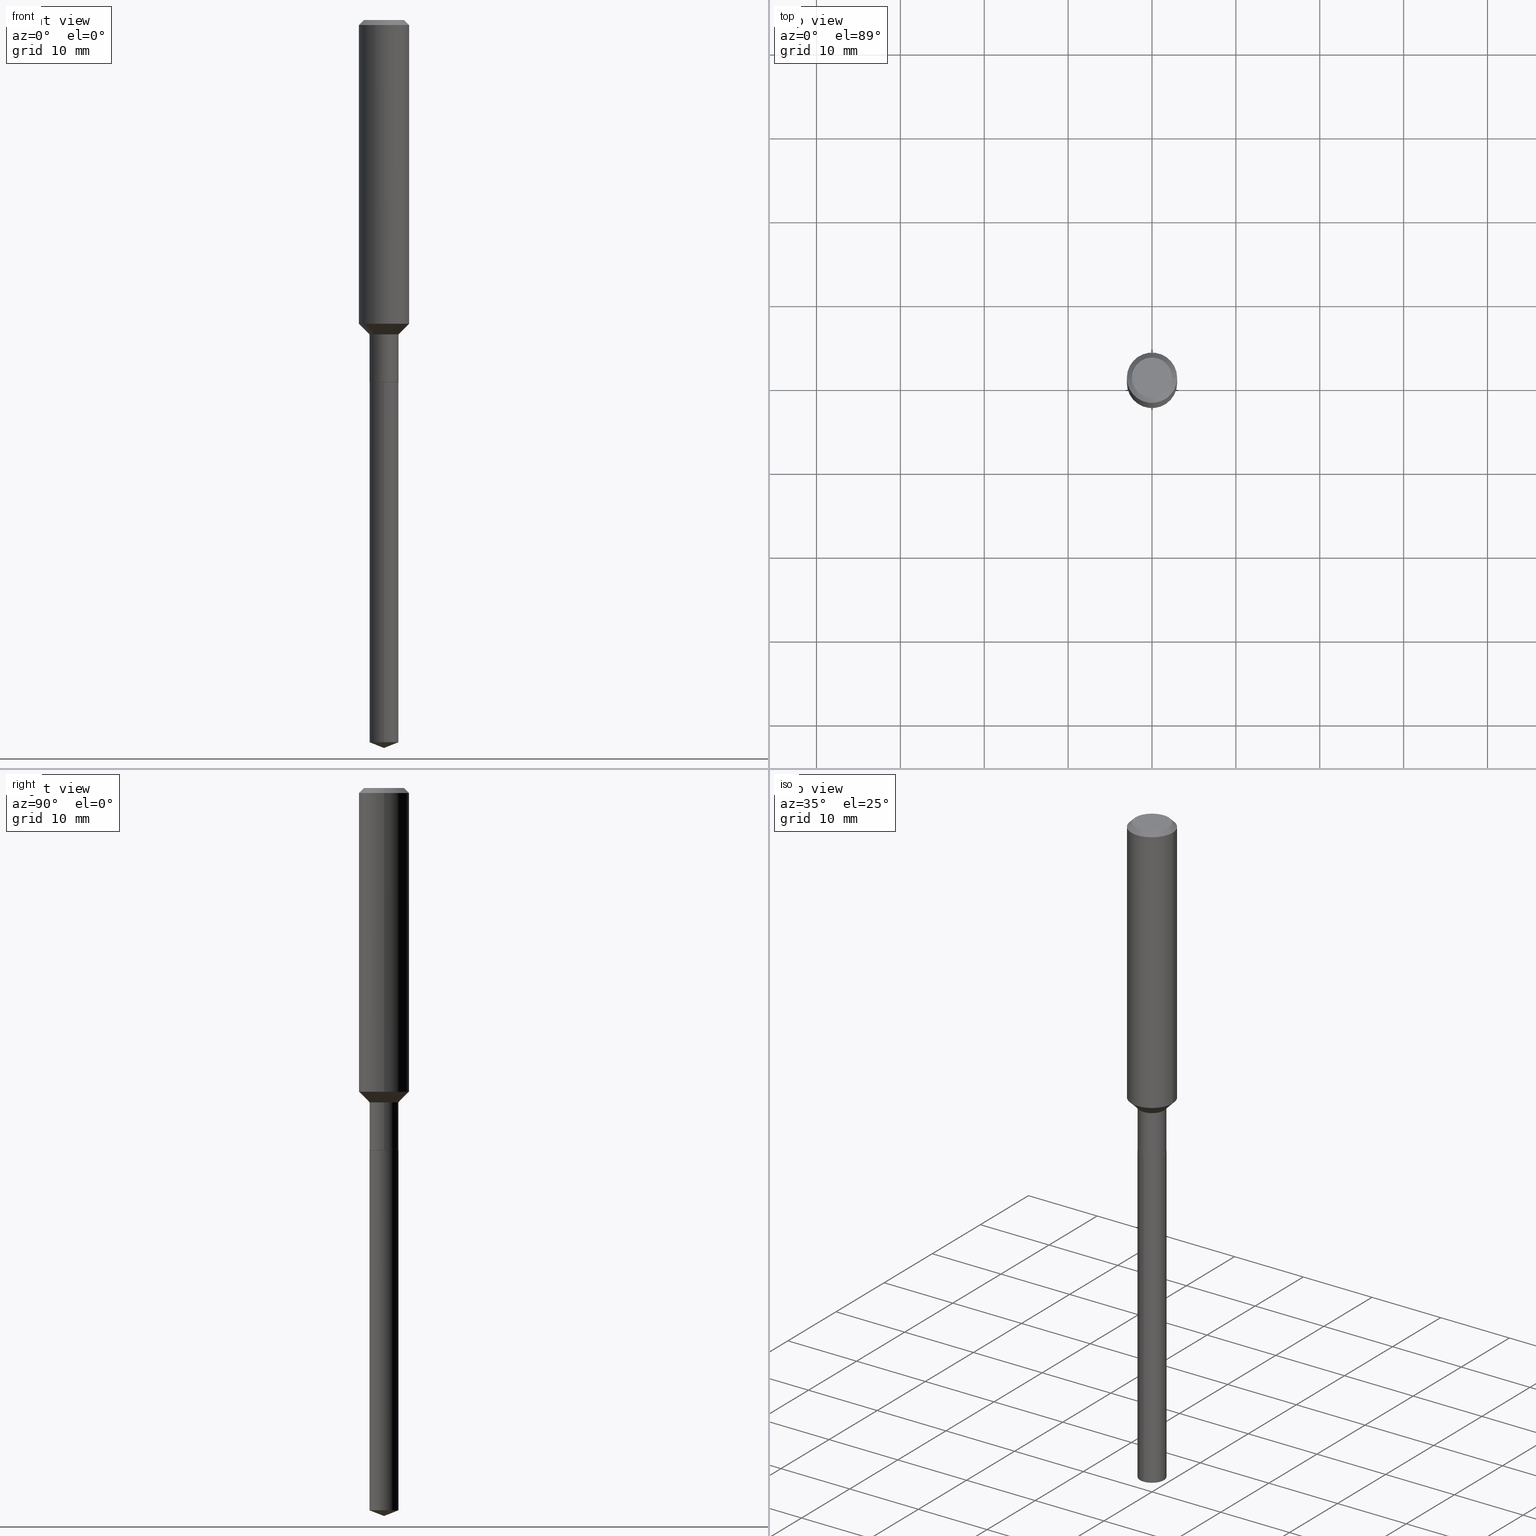
[diagram: canonical four-view strip — front | top / right | iso, engineering-drawing reading convention]
A machine part, canonical four-view strip (front | top / right | iso — engineering-drawing reading convention). The complete STEP part file that produces these views, byte-faithful:
ISO-10303-21;
HEADER;
FILE_DESCRIPTION (( 'STEP AP203' ),
    '1' );
FILE_NAME ('56509.STEP',
    '2024-04-24T18:16:12',
    ( '' ),
    ( '' ),
    'SwSTEP 2.0',
    'SolidWorks 2023',
    '' );
FILE_SCHEMA (( 'CONFIG_CONTROL_DESIGN' ));
ENDSEC;

DATA;
#1 = PERSON_AND_ORGANIZATION ( #308, #199 ) ;
#2 = CIRCLE ( 'NONE', #305, 0.06800000000000000488 ) ;
#3 = SHAPE_DEFINITION_REPRESENTATION ( #360, #361 ) ;
#4 = PERSON_AND_ORGANIZATION ( #308, #199 ) ;
#5 = EDGE_CURVE ( 'NONE', #236, #238, #112, .T. ) ;
#6 = DIRECTION ( 'NONE',  ( -2.445468806185136877E-29, 3.491481338843145188E-15, 1.000000000000000000 ) ) ;
#7 = VECTOR ( 'NONE', #245, 39.37007874015748143 ) ;
#8 = CARTESIAN_POINT ( 'NONE',  ( 4.156563329872874404E-29, -5.934470831631691157E-15, -1.699699999999999100 ) ) ;
#9 = ORIENTED_EDGE ( 'NONE', *, *, #343, .T. ) ;
#10 = EDGE_LOOP ( 'NONE', ( #11, #353 ) ) ;
#11 = ORIENTED_EDGE ( 'NONE', *, *, #456, .F. ) ;
#12 = VECTOR ( 'NONE', #85, 39.37007874015748143 ) ;
#13 = LOCAL_TIME ( 14, 16, 12.00000000000000000, #253 ) ;
#14 = ORIENTED_EDGE ( 'NONE', *, *, #34, .T. ) ;
#15 = CARTESIAN_POINT ( 'NONE',  ( 3.486015783216909425E-29, -4.977106648520900734E-15, -1.425499999999999101 ) ) ;
#16 = ORIENTED_EDGE ( 'NONE', *, *, #77, .F. ) ;
#17 = DIRECTION ( 'NONE',  ( -2.445468806185136877E-29, 3.491481338843145188E-15, 1.000000000000000000 ) ) ;
#18 = LINE ( 'NONE', #313, #378 ) ;
#19 = EDGE_CURVE ( 'NONE', #37, #236, #401, .T. ) ;
#20 = ORIENTED_EDGE ( 'NONE', *, *, #246, .T. ) ;
#21 = ADVANCED_FACE ( 'NONE', ( #49 ), #30, .T. ) ;
#22 = PLANE ( 'NONE',  #198 ) ;
#23 = CIRCLE ( 'NONE', #147, 0.06799999999999997713 ) ;
#24 = DIRECTION ( 'NONE',  ( -6.982962677686265133E-15, -1.000000000000000000, 3.498627837350077192E-15 ) ) ;
#25 = DIRECTION ( 'NONE',  ( 6.982962677686265922E-15, 1.000000000000000000, -3.486014308935233447E-15 ) ) ;
#26 = DIMENSIONAL_EXPONENTS ( 1.000000000000000000, 0.000000000000000000, 0.000000000000000000, 0.000000000000000000, 0.000000000000000000, 0.000000000000000000, 0.000000000000000000 ) ;
#27 = CARTESIAN_POINT ( 'NONE',  ( 0.06799999999999997713, -5.626871325679608817E-15, -1.475599999999999135 ) ) ;
#28 = FACE_OUTER_BOUND ( 'NONE', #389, .T. ) ;
#29 = DIRECTION ( 'NONE',  ( 1.000000000000000000, -6.982962677686265922E-15, 4.876176775795935793E-29 ) ) ;
#30 = CONICAL_SURFACE ( 'NONE', #89, 0.06750000000000000444, 0.7853981633975507526 ) ;
#31 = CIRCLE ( 'NONE', #279, 0.06750000000000000444 ) ;
#32 = DIRECTION ( 'NONE',  ( 0.000000000000000000, 0.000000000000000000, 1.000000000000000000 ) ) ;
#33 = DIRECTION ( 'NONE',  ( -2.449286412765611293E-29, 3.486014308935233053E-15, 1.000000000000000000 ) ) ;
#34 = EDGE_CURVE ( 'NONE', #37, #238, #18, .T. ) ;
#35 = VERTEX_POINT ( 'NONE', #471 ) ;
#36 = PERSON_AND_ORGANIZATION_ROLE ( 'creator' ) ;
#37 = VERTEX_POINT ( 'NONE', #235 ) ;
#38 = AXIS2_PLACEMENT_3D ( 'NONE', #231, #151, #45 ) ;
#39 = CC_DESIGN_APPROVAL ( #110, ( #130 ) ) ;
#40 = APPLICATION_CONTEXT ( 'configuration controlled 3d designs of mechanical parts and assemblies' ) ;
#41 = LINE ( 'NONE', #462, #325 ) ;
#42 = CLOSED_SHELL ( 'NONE', ( #21, #226, #56, #478, #258, #222, #119, #380, #384, #205, #186, #74 ) ) ;
#43 = AXIS2_PLACEMENT_3D ( 'NONE', #324, #352, #224 ) ;
#44 = AXIS2_PLACEMENT_3D ( 'NONE', #177, #366, #248 ) ;
#45 = DIRECTION ( 'NONE',  ( 1.000000000000000000, -6.982962677686268288E-15, 0.000000000000000000 ) ) ;
#46 = AXIS2_PLACEMENT_3D ( 'NONE', #326, #161, #24 ) ;
#47 = EDGE_LOOP ( 'NONE', ( #206, #96, #239, #265 ) ) ;
#48 = DIRECTION ( 'NONE',  ( -2.449286412765611293E-29, 3.486014308935233053E-15, 1.000000000000000000 ) ) ;
#49 = FACE_OUTER_BOUND ( 'NONE', #428, .T. ) ;
#50 = ORIENTED_EDGE ( 'NONE', *, *, #354, .F. ) ;
#51 = LINE ( 'NONE', #234, #434 ) ;
#52 = CARTESIAN_POINT ( 'NONE',  ( 3.608533770406785376E-29, -5.152029863596943281E-15, -1.475599999999999135 ) ) ;
#53 = ORIENTED_EDGE ( 'NONE', *, *, #191, .T. ) ;
#54 =( GEOMETRIC_REPRESENTATION_CONTEXT ( 3 ) GLOBAL_UNCERTAINTY_ASSIGNED_CONTEXT ( ( #329 ) ) GLOBAL_UNIT_ASSIGNED_CONTEXT ( ( #292, #288, #445 ) ) REPRESENTATION_CONTEXT ( 'NONE', 'WORKASPACE' ) );
#55 = ORIENTED_EDGE ( 'NONE', *, *, #19, .F. ) ;
#56 = ADVANCED_FACE ( 'NONE', ( #189 ), #464, .T. ) ;
#57 = FACE_OUTER_BOUND ( 'NONE', #438, .T. ) ;
#58 = ORIENTED_EDGE ( 'NONE', *, *, #300, .F. ) ;
#59 = DIRECTION ( 'NONE',  ( -2.449286412765611293E-29, 3.486014308935233053E-15, 1.000000000000000000 ) ) ;
#60 = FACE_OUTER_BOUND ( 'NONE', #10, .T. ) ;
#61 = ORIENTED_EDGE ( 'NONE', *, *, #312, .T. ) ;
#62 = CARTESIAN_POINT ( 'NONE',  ( 0.06799999999999997713, -5.626871325679608817E-15, -1.475599999999999135 ) ) ;
#63 = CARTESIAN_POINT ( 'NONE',  ( 0.000000000000000000, 0.000000000000000000, 0.000000000000000000 ) ) ;
#64 = VECTOR ( 'NONE', #17, 39.37007874015748143 ) ;
#65 = DIRECTION ( 'NONE',  ( -0.7071067811865459074, 2.468850131082240100E-15, -0.7071067811865491270 ) ) ;
#66 = DIRECTION ( 'NONE',  ( 1.000000000000000000, -6.982962677686263555E-15, 0.000000000000000000 ) ) ;
#67 = DIRECTION ( 'NONE',  ( -2.438088387897960049E-29, 3.491481338843145188E-15, 1.000000000000000000 ) ) ;
#68 = EDGE_LOOP ( 'NONE', ( #58, #190, #9, #156 ) ) ;
#69 = DATE_TIME_ROLE ( 'creation_date' ) ;
#70 = DIRECTION ( 'NONE',  ( 1.000000000000000000, -6.982962677686260400E-15, 0.000000000000000000 ) ) ;
#71 = ORIENTED_EDGE ( 'NONE', *, *, #227, .F. ) ;
#72 = CONICAL_SURFACE ( 'NONE', #476, 0.06799999999999997713, 0.7853981633974491672 ) ;
#73 = PERSON_AND_ORGANIZATION_ROLE ( 'creator' ) ;
#74 = ADVANCED_FACE ( 'NONE', ( #310 ), #183, .T. ) ;
#75 = EDGE_CURVE ( 'NONE', #35, #407, #81, .T. ) ;
#76 = APPROVAL_ROLE ( '' ) ;
#77 = EDGE_CURVE ( 'NONE', #211, #123, #269, .T. ) ;
#78 = PERSON_AND_ORGANIZATION ( #308, #199 ) ;
#79 = CLOSED_SHELL ( 'NONE', ( #284, #341, #406, #303, #135 ) ) ;
#80 = AXIS2_PLACEMENT_3D ( 'NONE', #15, #473, #170 ) ;
#81 = LINE ( 'NONE', #427, #277 ) ;
#82 = AXIS2_PLACEMENT_3D ( 'NONE', #330, #213, #70 ) ;
#83 = CONICAL_SURFACE ( 'NONE', #46, 99.94676754583788636, 1.195550537616112408 ) ;
#84 = ORIENTED_EDGE ( 'NONE', *, *, #187, .F. ) ;
#85 = DIRECTION ( 'NONE',  ( -2.449286412765611293E-29, 3.486014308935233447E-15, 1.000000000000000000 ) ) ;
#86 = ORIENTED_EDGE ( 'NONE', *, *, #479, .F. ) ;
#87 = DIRECTION ( 'NONE',  ( -2.445468806185136597E-29, 3.491481338843145583E-15, 1.000000000000000000 ) ) ;
#88 = ORIENTED_EDGE ( 'NONE', *, *, #479, .T. ) ;
#89 = AXIS2_PLACEMENT_3D ( 'NONE', #8, #363, #429 ) ;
#90 = CARTESIAN_POINT ( 'NONE',  ( 8.369325470406068232E-29, -1.191171089363168791E-14, -3.416999999999998927 ) ) ;
#91 = ORIENTED_EDGE ( 'NONE', *, *, #244, .T. ) ;
#92 = CARTESIAN_POINT ( 'NONE',  ( 3.608533770406785376E-29, -5.152029863596943281E-15, -1.475599999999999135 ) ) ;
#93 = EDGE_LOOP ( 'NONE', ( #433, #88, #233, #162 ) ) ;
#94 = CYLINDRICAL_SURFACE ( 'NONE', #43, 0.06800000000000000488 ) ;
#95 = CARTESIAN_POINT ( 'NONE',  ( 0.06750000000000000444, -6.405820812375514475E-15, -1.699699999999999100 ) ) ;
#96 = ORIENTED_EDGE ( 'NONE', *, *, #354, .T. ) ;
#97 = CARTESIAN_POINT ( 'NONE',  ( 4.156563329872874404E-29, -5.934470831631691157E-15, -1.699699999999999100 ) ) ;
#98 = FACE_OUTER_BOUND ( 'NONE', #475, .T. ) ;
#99 = CIRCLE ( 'NONE', #44, 0.09447999999999998066 ) ;
#100 = COORDINATED_UNIVERSAL_TIME_OFFSET ( 5, 0, .BEHIND. ) ;
#101 = CARTESIAN_POINT ( 'NONE',  ( -0.06799999999999997713, -4.668860803280075514E-15, -1.475599999999999135 ) ) ;
#102 = VERTEX_POINT ( 'NONE', #432 ) ;
#103 = CARTESIAN_POINT ( 'NONE',  ( 4.155340595469782163E-29, -5.932725090962269653E-15, -1.699199999999999156 ) ) ;
#104 = ORIENTED_EDGE ( 'NONE', *, *, #34, .F. ) ;
#105 = AXIS2_PLACEMENT_3D ( 'NONE', #385, #391, #271 ) ;
#106 = LOCAL_TIME ( 14, 16, 12.00000000000000000, #219 ) ;
#107 = AXIS2_PLACEMENT_3D ( 'NONE', #321, #167, #237 ) ;
#108 = APPROVAL_DATE_TIME ( #375, #110 ) ;
#109 = EDGE_CURVE ( 'NONE', #466, #123, #450, .T. ) ;
#110 = APPROVAL ( #448, 'UNSPECIFIED' ) ;
#111 = COORDINATED_UNIVERSAL_TIME_OFFSET ( 5, 0, .BEHIND. ) ;
#112 = CIRCLE ( 'NONE', #397, 0.06800000000000000488 ) ;
#113 = AXIS2_PLACEMENT_3D ( 'NONE', #120, #468, #164 ) ;
#114 = DIRECTION ( 'NONE',  ( -2.445468806185136597E-29, 3.491481338843145583E-15, 1.000000000000000000 ) ) ;
#115 = EDGE_CURVE ( 'NONE', #238, #160, #229, .T. ) ;
#116 = DIRECTION ( 'NONE',  ( 1.000000000000000000, -6.982962677686266711E-15, 0.000000000000000000 ) ) ;
#117 = EDGE_LOOP ( 'NONE', ( #165, #157 ) ) ;
#118 = AXIS2_PLACEMENT_3D ( 'NONE', #153, #48, #309 ) ;
#119 = ADVANCED_FACE ( 'NONE', ( #393 ), #72, .T. ) ;
#120 = CARTESIAN_POINT ( 'NONE',  ( 4.156563329872874404E-29, -5.934470831631691157E-15, -1.699699999999999100 ) ) ;
#121 = VERTEX_POINT ( 'NONE', #272 ) ;
#122 = DIRECTION ( 'NONE',  ( -0.7071067811866199593, 7.493145998870616062E-15, 0.7071067811864750752 ) ) ;
#123 = VERTEX_POINT ( 'NONE', #388 ) ;
#124 = FACE_OUTER_BOUND ( 'NONE', #270, .T. ) ;
#125 = DIRECTION ( 'NONE',  ( 1.000000000000000000, -6.982962677686266711E-15, 4.876176775795936353E-29 ) ) ;
#126 = EDGE_LOOP ( 'NONE', ( #314, #447, #202, #197 ) ) ;
#127 = CARTESIAN_POINT ( 'NONE',  ( 4.831690603169513859E-16, 0.06799999999999407907, -1.699699999999999322 ) ) ;
#128 = VECTOR ( 'NONE', #411, 39.37007874015748143 ) ;
#129 = CARTESIAN_POINT ( 'NONE',  ( 0.09447999999999998066, -7.704367267948738690E-16, -2.700101262759583929E-17 ) ) ;
#130 = PRODUCT_DEFINITION_FORMATION_WITH_SPECIFIED_SOURCE ( 'ANY', '', #261, .NOT_KNOWN. ) ;
#131 = EDGE_LOOP ( 'NONE', ( #16, #264, #154, #461 ) ) ;
#132 = DIRECTION ( 'NONE',  ( 0.7071067811866199593, -2.468850131083015945E-15, 0.7071067811864750752 ) ) ;
#133 = LINE ( 'NONE', #362, #64 ) ;
#134 = PLANE ( 'NONE',  #399 ) ;
#135 = ADVANCED_FACE ( 'NONE', ( #403 ), #134, .F. ) ;
#136 = CARTESIAN_POINT ( 'NONE',  ( -0.1180999999999999966, -1.690636747939508715E-15, -0.02362000000000014435 ) ) ;
#137 = CARTESIAN_POINT ( 'NONE',  ( -4.748414620825831994E-16, -0.06800000000001184264, -3.390214087658182773 ) ) ;
#138 = DIRECTION ( 'NONE',  ( 1.000000000000000000, -6.982962677686266711E-15, 0.000000000000000000 ) ) ;
#139 = CARTESIAN_POINT ( 'NONE',  ( -4.748414620826246146E-16, -0.06800000000000594458, -1.699699999999998878 ) ) ;
#140 = AXIS2_PLACEMENT_3D ( 'NONE', #337, #210, #66 ) ;
#141 = EDGE_LOOP ( 'NONE', ( #104, #317, #398 ) ) ;
#142 = AXIS2_PLACEMENT_3D ( 'NONE', #370, #482, #163 ) ;
#143 = APPROVAL_ROLE ( '' ) ;
#144 = CYLINDRICAL_SURFACE ( 'NONE', #347, 0.06800000000000000488 ) ;
#145 = APPROVAL_STATUS ( 'not_yet_approved' ) ;
#146 = DATE_AND_TIME ( #179, #336 ) ;
#147 = AXIS2_PLACEMENT_3D ( 'NONE', #263, #458, #307 ) ;
#148 = CALENDAR_DATE ( 2024, 24, 4 ) ;
#149 = SECURITY_CLASSIFICATION_LEVEL ( 'unclassified' ) ;
#150 = AXIS2_PLACEMENT_3D ( 'NONE', #192, #87, #116 ) ;
#151 = DIRECTION ( 'NONE',  ( -2.445468806185136597E-29, 3.491481338843145583E-15, 1.000000000000000000 ) ) ;
#152 = EDGE_CURVE ( 'NONE', #323, #102, #291, .T. ) ;
#153 = CARTESIAN_POINT ( 'NONE',  ( -8.806587604126471793E-28, 1.253236546277296168E-13, 35.95307874015747984 ) ) ;
#154 = ORIENTED_EDGE ( 'NONE', *, *, #453, .T. ) ;
#155 = VERTEX_POINT ( 'NONE', #95 ) ;
#156 = ORIENTED_EDGE ( 'NONE', *, *, #340, .F. ) ;
#157 = ORIENTED_EDGE ( 'NONE', *, *, #172, .T. ) ;
#158 = CIRCLE ( 'NONE', #409, 0.1180999999999999966 ) ;
#159 = VERTEX_POINT ( 'NONE', #485 ) ;
#160 = VERTEX_POINT ( 'NONE', #139 ) ;
#161 = DIRECTION ( 'NONE',  ( -2.449286412765611293E-29, 3.486014308935233053E-15, 1.000000000000000000 ) ) ;
#162 = ORIENTED_EDGE ( 'NONE', *, *, #115, .F. ) ;
#163 = DIRECTION ( 'NONE',  ( -1.000000000000000000, 6.982962677686266711E-15, 0.000000000000000000 ) ) ;
#164 = DIRECTION ( 'NONE',  ( 1.000000000000000000, -6.982962677686268288E-15, 0.000000000000000000 ) ) ;
#165 = ORIENTED_EDGE ( 'NONE', *, *, #386, .T. ) ;
#166 = AXIS2_PLACEMENT_3D ( 'NONE', #412, #204, #373 ) ;
#167 = DIRECTION ( 'NONE',  ( -2.445468806185136597E-29, 3.491481338843145583E-15, 1.000000000000000000 ) ) ;
#168 = CC_DESIGN_APPROVAL ( #232, ( #260 ) ) ;
#169 = DIRECTION ( 'NONE',  ( -1.000000000000000000, 6.982962677686265922E-15, -4.876176775795935793E-29 ) ) ;
#170 = DIRECTION ( 'NONE',  ( 1.000000000000000000, -6.982962677686263555E-15, 0.000000000000000000 ) ) ;
#171 = DIRECTION ( 'NONE',  ( -1.000000000000000000, 6.982962677686266711E-15, 0.000000000000000000 ) ) ;
#172 = EDGE_CURVE ( 'NONE', #402, #160, #207, .T. ) ;
#173 = LINE ( 'NONE', #331, #7 ) ;
#174 = DESIGN_CONTEXT ( 'detailed design', #40, 'design' ) ;
#175 = CYLINDRICAL_SURFACE ( 'NONE', #443, 0.06800000000000000488 ) ;
#176 = CARTESIAN_POINT ( 'NONE',  ( 0.000000000000000000, 0.000000000000000000, 0.000000000000000000 ) ) ;
#177 = CARTESIAN_POINT ( 'NONE',  ( 6.603013411620882309E-46, -9.427353171913646324E-32, -2.700101262760083747E-17 ) ) ;
#178 = ORIENTED_EDGE ( 'NONE', *, *, #75, .T. ) ;
#179 = CALENDAR_DATE ( 2024, 24, 4 ) ;
#180 = PRODUCT_DEFINITION ( 'UNKNOWN', '', #130, #174 ) ;
#181 = CC_DESIGN_DATE_AND_TIME_ASSIGNMENT ( #304, #344, ( #260 ) ) ;
#182 = PERSON_AND_ORGANIZATION ( #308, #199 ) ;
#183 = CONICAL_SURFACE ( 'NONE', #113, 0.06750000000000000444, 0.7853981633975507526 ) ;
#184 = DATE_AND_TIME ( #148, #13 ) ;
#185 = EDGE_CURVE ( 'NONE', #364, #121, #408, .T. ) ;
#186 = ADVANCED_FACE ( 'NONE', ( #60 ), #376, .F. ) ;
#187 = EDGE_CURVE ( 'NONE', #407, #282, #387, .T. ) ;
#188 = AXIS2_PLACEMENT_3D ( 'NONE', #350, #114, #125 ) ;
#189 = FACE_OUTER_BOUND ( 'NONE', #47, .T. ) ;
#190 = ORIENTED_EDGE ( 'NONE', *, *, #187, .T. ) ;
#191 = EDGE_CURVE ( 'NONE', #211, #159, #99, .T. ) ;
#192 = CARTESIAN_POINT ( 'NONE',  ( 5.776197320209328408E-31, -8.246878922347560526E-17, -0.02362000000000014435 ) ) ;
#193 = CC_DESIGN_PERSON_AND_ORGANIZATION_ASSIGNMENT ( #452, #73, ( #180 ) ) ;
#194 = ORIENTED_EDGE ( 'NONE', *, *, #77, .T. ) ;
#195 = MANIFOLD_SOLID_BREP ( 'Body-Move/Copy2[1]', #79 ) ;
#196 = DIRECTION ( 'NONE',  ( -2.445468806185136597E-29, 3.491481338843145583E-15, 1.000000000000000000 ) ) ;
#197 = ORIENTED_EDGE ( 'NONE', *, *, #152, .F. ) ;
#198 = AXIS2_PLACEMENT_3D ( 'NONE', #449, #405, #169 ) ;
#199 = ORGANIZATION ( 'UNSPECIFIED', 'UNSPECIFIED', '' ) ;
#200 = ORIENTED_EDGE ( 'NONE', *, *, #422, .F. ) ;
#201 = DIRECTION ( 'NONE',  ( -2.445468806185136877E-29, 3.491481338843145188E-15, 1.000000000000000000 ) ) ;
#202 = ORIENTED_EDGE ( 'NONE', *, *, #374, .T. ) ;
#203 = ORIENTED_EDGE ( 'NONE', *, *, #227, .T. ) ;
#204 = DIRECTION ( 'NONE',  ( -2.445468806185136597E-29, 3.491481338843145583E-15, 1.000000000000000000 ) ) ;
#205 = ADVANCED_FACE ( 'NONE', ( #327 ), #22, .F. ) ;
#206 = ORIENTED_EDGE ( 'NONE', *, *, #422, .T. ) ;
#207 = CIRCLE ( 'NONE', #420, 0.06800000000000000488 ) ;
#208 = FACE_OUTER_BOUND ( 'NONE', #131, .T. ) ;
#209 = CC_DESIGN_APPROVAL ( #383, ( #180 ) ) ;
#210 = DIRECTION ( 'NONE',  ( -2.445468806185136597E-29, 3.491481338843145583E-15, 1.000000000000000000 ) ) ;
#211 = VERTEX_POINT ( 'NONE', #129 ) ;
#212 = CARTESIAN_POINT ( 'NONE',  ( 5.776197320209328408E-31, -8.246878922347560526E-17, -0.02362000000000014435 ) ) ;
#213 = DIRECTION ( 'NONE',  ( -2.445468806185136597E-29, 3.491481338843145583E-15, 1.000000000000000000 ) ) ;
#214 = DIRECTION ( 'NONE',  ( 1.000000000000000000, -6.982962677686260400E-15, 0.000000000000000000 ) ) ;
#215 = MANIFOLD_SOLID_BREP ( 'Body-Move/Copy2[2]', #42 ) ;
#216 = CALENDAR_DATE ( 2024, 24, 4 ) ;
#217 = CARTESIAN_POINT ( 'NONE',  ( 6.603013411620882309E-46, -9.427353171913646324E-32, -2.700101262760083747E-17 ) ) ;
#218 = CIRCLE ( 'NONE', #82, 0.06800000000000000488 ) ;
#219 = COORDINATED_UNIVERSAL_TIME_OFFSET ( 5, 0, .BEHIND. ) ;
#220 = EDGE_LOOP ( 'NONE', ( #442, #287, #425, #84 ) ) ;
#221 = APPROVAL_DATE_TIME ( #184, #383 ) ;
#222 = ADVANCED_FACE ( 'NONE', ( #437 ), #144, .T. ) ;
#223 = PERSON_AND_ORGANIZATION_ROLE ( 'design_supplier' ) ;
#224 = DIRECTION ( 'NONE',  ( -6.982962677686265922E-15, -1.000000000000000000, 4.017423520094504617E-15 ) ) ;
#225 = AXIS2_PLACEMENT_3D ( 'NONE', #176, #32, #417 ) ;
#226 = ADVANCED_FACE ( 'NONE', ( #98 ), #266, .T. ) ;
#227 = EDGE_CURVE ( 'NONE', #282, #407, #218, .T. ) ;
#228 = CARTESIAN_POINT ( 'NONE',  ( -0.1181000000000001632, -4.137955677588221748E-15, -1.425499999999999101 ) ) ;
#229 = LINE ( 'NONE', #459, #12 ) ;
#230 = CIRCLE ( 'NONE', #38, 0.06750000000000000444 ) ;
#231 = CARTESIAN_POINT ( 'NONE',  ( 4.156563329872874404E-29, -5.934470831631691157E-15, -1.699699999999999100 ) ) ;
#232 = APPROVAL ( #487, 'UNSPECIFIED' ) ;
#233 = ORIENTED_EDGE ( 'NONE', *, *, #386, .F. ) ;
#234 = CARTESIAN_POINT ( 'NONE',  ( -0.06800000000000000488, 4.831690603168681611E-16, -3.344875861373336055E-30 ) ) ;
#235 = CARTESIAN_POINT ( 'NONE',  ( 8.369211672420092534E-29, -1.191171089363168791E-14, -3.416999999999998927 ) ) ;
#236 = VERTEX_POINT ( 'NONE', #483 ) ;
#237 = DIRECTION ( 'NONE',  ( 1.000000000000000000, -6.982962677686266711E-15, 4.876176775795936353E-29 ) ) ;
#238 = VERTEX_POINT ( 'NONE', #137 ) ;
#239 = ORIENTED_EDGE ( 'NONE', *, *, #435, .F. ) ;
#240 = AXIS2_PLACEMENT_3D ( 'NONE', #217, #481, #415 ) ;
#241 = DIRECTION ( 'NONE',  ( -6.982962677686265922E-15, -1.000000000000000000, 4.017423520094504617E-15 ) ) ;
#242 = DIRECTION ( 'NONE',  ( 6.611014441532047656E-15, 0.9304175679820245737, 0.3665012267242971356 ) ) ;
#243 = ORIENTED_EDGE ( 'NONE', *, *, #185, .F. ) ;
#244 = EDGE_CURVE ( 'NONE', #121, #323, #251, .T. ) ;
#245 = DIRECTION ( 'NONE',  ( -2.449286412765611293E-29, 3.486014308935233447E-15, 1.000000000000000000 ) ) ;
#246 = EDGE_CURVE ( 'NONE', #159, #211, #368, .T. ) ;
#247 = CARTESIAN_POINT ( 'NONE',  ( 4.156563329872874404E-29, -5.934470831631691157E-15, -1.699699999999999100 ) ) ;
#248 = DIRECTION ( 'NONE',  ( 1.000000000000000000, -6.982962677686267499E-15, 4.875432709231658792E-29 ) ) ;
#249 = VECTOR ( 'NONE', #250, 39.37007874015748143 ) ;
#250 = DIRECTION ( 'NONE',  ( 0.7071067811865481278, -2.468850131082263371E-15, 0.7071067811865469066 ) ) ;
#251 = LINE ( 'NONE', #101, #128 ) ;
#252 = CARTESIAN_POINT ( 'NONE',  ( 0.000000000000000000, 0.000000000000000000, 0.000000000000000000 ) ) ;
#253 = COORDINATED_UNIVERSAL_TIME_OFFSET ( 5, 0, .BEHIND. ) ;
#254 = DIRECTION ( 'NONE',  ( -2.445468806185136597E-29, 3.491481338843145583E-15, 1.000000000000000000 ) ) ;
#255 = CONICAL_SURFACE ( 'NONE', #142, 0.1180999999999999966, 0.7853981633974460586 ) ;
#256 = PERSON_AND_ORGANIZATION ( #308, #199 ) ;
#257 = CALENDAR_DATE ( 2024, 24, 4 ) ;
#258 = ADVANCED_FACE ( 'NONE', ( #28 ), #175, .T. ) ;
#259 = VECTOR ( 'NONE', #423, 39.37007874015748143 ) ;
#260 = SECURITY_CLASSIFICATION ( '', '', #149 ) ;
#261 = PRODUCT ( '56509', '56509', '', ( #296 ) ) ;
#262 = DIRECTION ( 'NONE',  ( -6.982962677686265922E-15, -1.000000000000000000, 0.000000000000000000 ) ) ;
#263 = CARTESIAN_POINT ( 'NONE',  ( 3.608533770406785376E-29, -5.152029863596943281E-15, -1.475599999999999135 ) ) ;
#264 = ORIENTED_EDGE ( 'NONE', *, *, #246, .F. ) ;
#265 = ORIENTED_EDGE ( 'NONE', *, *, #312, .F. ) ;
#266 = CONICAL_SURFACE ( 'NONE', #455, 0.1180999999999999966, 0.7853981633974460586 ) ;
#267 = CIRCLE ( 'NONE', #80, 0.1181000000000001632 ) ;
#268 = LINE ( 'NONE', #355, #463 ) ;
#269 = LINE ( 'NONE', #396, #259 ) ;
#270 = EDGE_LOOP ( 'NONE', ( #50, #392, #61, #394 ) ) ;
#271 = DIRECTION ( 'NONE',  ( -6.982962677686265922E-15, -1.000000000000000000, 4.017423520094504617E-15 ) ) ;
#272 = CARTESIAN_POINT ( 'NONE',  ( -0.06799999999999997713, -5.059208416962737911E-15, -1.475599999999999135 ) ) ;
#273 = ORIENTED_EDGE ( 'NONE', *, *, #191, .F. ) ;
#274 = DIRECTION ( 'NONE',  ( -2.449286412765611293E-29, 3.486014308935233053E-15, 1.000000000000000000 ) ) ;
#275 = EDGE_LOOP ( 'NONE', ( #55, #14, #472 ) ) ;
#276 = EDGE_CURVE ( 'NONE', #238, #236, #2, .T. ) ;
#277 = VECTOR ( 'NONE', #122, 39.37007874015748143 ) ;
#278 = EDGE_CURVE ( 'NONE', #155, #282, #474, .T. ) ;
#279 = AXIS2_PLACEMENT_3D ( 'NONE', #97, #410, #400 ) ;
#280 = CARTESIAN_POINT ( 'NONE',  ( -0.06800000000000001876, -5.059208416962737911E-15, -1.699199999999999156 ) ) ;
#281 = DIRECTION ( 'NONE',  ( -2.445468806185136597E-29, 3.491481338843145583E-15, 1.000000000000000000 ) ) ;
#282 = VERTEX_POINT ( 'NONE', #283 ) ;
#283 = CARTESIAN_POINT ( 'NONE',  ( 0.06800000000000000488, -6.407566553044935190E-15, -1.699199999999999156 ) ) ;
#284 = ADVANCED_FACE ( 'NONE', ( #439 ), #94, .T. ) ;
#285 = DIRECTION ( 'NONE',  ( -2.445468806185136597E-29, 3.491481338843145583E-15, 1.000000000000000000 ) ) ;
#286 = DIRECTION ( 'NONE',  ( 2.449286412765610733E-29, -3.486014308935233447E-15, -1.000000000000000000 ) ) ;
#287 = ORIENTED_EDGE ( 'NONE', *, *, #319, .T. ) ;
#288 =( NAMED_UNIT ( * ) PLANE_ANGLE_UNIT ( ) SI_UNIT ( $, .RADIAN. ) );
#289 = CARTESIAN_POINT ( 'NONE',  ( 4.156563329872874404E-29, -5.934470831631691157E-15, -1.699699999999999100 ) ) ;
#290 = APPLICATION_CONTEXT ( 'configuration controlled 3d designs of mechanical parts and assemblies' ) ;
#291 = CIRCLE ( 'NONE', #140, 0.1181000000000001632 ) ;
#292 =( CONVERSION_BASED_UNIT ( 'INCH', #365 ) LENGTH_UNIT ( ) NAMED_UNIT ( #26 ) );
#293 = VECTOR ( 'NONE', #65, 39.37007874015748143 ) ;
#294 = DIRECTION ( 'NONE',  ( -6.982962677686265922E-15, -1.000000000000000000, 4.017423520094504617E-15 ) ) ;
#295 = ORIENTED_EDGE ( 'NONE', *, *, #374, .F. ) ;
#296 = MECHANICAL_CONTEXT ( 'NONE', #290, 'mechanical' ) ;
#297 = DIRECTION ( 'NONE',  ( 1.000000000000000000, -6.982962677686265922E-15, 4.876176775795934672E-29 ) ) ;
#298 = ORIENTED_EDGE ( 'NONE', *, *, #456, .T. ) ;
#299 = APPROVAL_DATE_TIME ( #146, #232 ) ;
#300 = EDGE_CURVE ( 'NONE', #407, #121, #51, .T. ) ;
#301 = APPLICATION_PROTOCOL_DEFINITION ( 'international standard', 'config_control_design', 1994, #290 ) ;
#302 = AXIS2_PLACEMENT_3D ( 'NONE', #103, #281, #214 ) ;
#303 = ADVANCED_FACE ( 'NONE', ( #467 ), #457, .T. ) ;
#304 = DATE_AND_TIME ( #419, #357 ) ;
#305 = AXIS2_PLACEMENT_3D ( 'NONE', #381, #33, #322 ) ;
#306 = APPROVAL_PERSON_ORGANIZATION ( #490, #383, #76 ) ;
#307 = DIRECTION ( 'NONE',  ( 1.000000000000000000, -6.982962677686262766E-15, 0.000000000000000000 ) ) ;
#308 = PERSON ( 'UNSPECIFIED', 'UNSPECIFIED', 'UNSPECIFIED', ('UNSPECIFIED'), ('UNSPECIFIED'), ('UNSPECIFIED') ) ;
#309 = DIRECTION ( 'NONE',  ( -6.982962677686265133E-15, -1.000000000000000000, 3.498627837350077192E-15 ) ) ;
#310 = FACE_OUTER_BOUND ( 'NONE', #220, .T. ) ;
#311 = ORIENTED_EDGE ( 'NONE', *, *, #5, .T. ) ;
#312 = EDGE_CURVE ( 'NONE', #102, #123, #41, .T. ) ;
#313 = CARTESIAN_POINT ( 'NONE',  ( 8.356234100610426328E-29, -1.193029551510064508E-14, -3.416999999999998927 ) ) ;
#314 = ORIENTED_EDGE ( 'NONE', *, *, #244, .F. ) ;
#315 = CC_DESIGN_SECURITY_CLASSIFICATION ( #260, ( #130 ) ) ;
#316 = CC_DESIGN_PERSON_AND_ORGANIZATION_ASSIGNMENT ( #256, #414, ( #261 ) ) ;
#317 = ORIENTED_EDGE ( 'NONE', *, *, #19, .T. ) ;
#318 = DIRECTION ( 'NONE',  ( -6.497071151882101692E-15, -0.9304175679820220202, 0.3665012267243036304 ) ) ;
#319 = EDGE_CURVE ( 'NONE', #35, #155, #230, .T. ) ;
#320 = ORIENTED_EDGE ( 'NONE', *, *, #300, .T. ) ;
#321 = CARTESIAN_POINT ( 'NONE',  ( 0.000000000000000000, 0.000000000000000000, 0.000000000000000000 ) ) ;
#322 = DIRECTION ( 'NONE',  ( -6.982962677686265922E-15, -1.000000000000000000, 0.000000000000000000 ) ) ;
#323 = VERTEX_POINT ( 'NONE', #228 ) ;
#324 = CARTESIAN_POINT ( 'NONE',  ( 4.156563329872874404E-29, -5.934470831631691157E-15, -1.699699999999999100 ) ) ;
#325 = VECTOR ( 'NONE', #421, 39.37007874015748143 ) ;
#326 = CARTESIAN_POINT ( 'NONE',  ( -8.806587604126471793E-28, 1.253236546277296168E-13, 35.95307874015747984 ) ) ;
#327 = FACE_OUTER_BOUND ( 'NONE', #413, .T. ) ;
#328 = LINE ( 'NONE', #27, #249 ) ;
#329 = UNCERTAINTY_MEASURE_WITH_UNIT (LENGTH_MEASURE( 1.000000000000000082E-05 ), #292, 'distance_accuracy_value', 'NONE');
#330 = CARTESIAN_POINT ( 'NONE',  ( 4.155340595469782163E-29, -5.932725090962269653E-15, -1.699199999999999156 ) ) ;
#331 = CARTESIAN_POINT ( 'NONE',  ( 4.831690603169095763E-16, 0.06799999999999406519, -1.699699999999999322 ) ) ;
#332 = CARTESIAN_POINT ( 'NONE',  ( 4.156563329872874404E-29, -5.934470831631691157E-15, -1.699699999999999100 ) ) ;
#333 = EDGE_LOOP ( 'NONE', ( #86, #311, #338, #359 ) ) ;
#334 = AXIS2_PLACEMENT_3D ( 'NONE', #289, #67, #29 ) ;
#335 = PERSON_AND_ORGANIZATION_ROLE ( 'classification_officer' ) ;
#336 = LOCAL_TIME ( 14, 16, 12.00000000000000000, #100 ) ;
#337 = CARTESIAN_POINT ( 'NONE',  ( 3.486015783216909425E-29, -4.977106648520900734E-15, -1.425499999999999101 ) ) ;
#338 = ORIENTED_EDGE ( 'NONE', *, *, #115, .T. ) ;
#339 = COORDINATED_UNIVERSAL_TIME_OFFSET ( 5, 0, .BEHIND. ) ;
#340 = EDGE_CURVE ( 'NONE', #121, #364, #23, .T. ) ;
#341 = ADVANCED_FACE ( 'NONE', ( #349 ), #345, .T. ) ;
#342 = APPLICATION_PROTOCOL_DEFINITION ( 'international standard', 'config_control_design', 1994, #40 ) ;
#343 = EDGE_CURVE ( 'NONE', #282, #364, #268, .T. ) ;
#344 = DATE_TIME_ROLE ( 'classification_date' ) ;
#345 = CONICAL_SURFACE ( 'NONE', #118, 99.94676754583788636, 1.195550537616112408 ) ;
#346 = DATE_AND_TIME ( #257, #106 ) ;
#347 = AXIS2_PLACEMENT_3D ( 'NONE', #63, #254, #441 ) ;
#348 = CONICAL_SURFACE ( 'NONE', #369, 0.06799999999999997713, 0.7853981633974491672 ) ;
#349 = FACE_OUTER_BOUND ( 'NONE', #141, .T. ) ;
#350 = CARTESIAN_POINT ( 'NONE',  ( 0.000000000000000000, 0.000000000000000000, 0.000000000000000000 ) ) ;
#351 = ORIENTED_EDGE ( 'NONE', *, *, #343, .F. ) ;
#352 = DIRECTION ( 'NONE',  ( -2.449286412765611293E-29, 3.486014308935233053E-15, 1.000000000000000000 ) ) ;
#353 = ORIENTED_EDGE ( 'NONE', *, *, #319, .F. ) ;
#354 = EDGE_CURVE ( 'NONE', #323, #466, #133, .T. ) ;
#355 = CARTESIAN_POINT ( 'NONE',  ( 0.06800000000000000488, -4.748414620826661284E-16, 3.315800207541236003E-30 ) ) ;
#356 = DIRECTION ( 'NONE',  ( 1.000000000000000000, -6.982962677686262766E-15, 0.000000000000000000 ) ) ;
#357 = LOCAL_TIME ( 14, 16, 12.00000000000000000, #339 ) ;
#358 = CARTESIAN_POINT ( 'NONE',  ( 8.297116515362916706E-29, -1.182762713066471135E-14, -3.390214087658182773 ) ) ;
#359 = ORIENTED_EDGE ( 'NONE', *, *, #172, .F. ) ;
#360 = PRODUCT_DEFINITION_SHAPE ( 'NONE', 'NONE',  #180 ) ;
#361 = ADVANCED_BREP_SHAPE_REPRESENTATION ( '56509', ( #195, #215, #225 ), #54 ) ;
#362 = CARTESIAN_POINT ( 'NONE',  ( -0.1181000000000000799, 8.391509709326788873E-16, -5.809262341591047988E-30 ) ) ;
#363 = DIRECTION ( 'NONE',  ( -2.445468806185136597E-29, 3.491481338843145583E-15, 1.000000000000000000 ) ) ;
#364 = VERTEX_POINT ( 'NONE', #62 ) ;
#365 = LENGTH_MEASURE_WITH_UNIT ( LENGTH_MEASURE( 0.02539999999999999897 ), #431 );
#366 = DIRECTION ( 'NONE',  ( -2.445468806185136597E-29, 3.491481338843145583E-15, 1.000000000000000000 ) ) ;
#367 = CC_DESIGN_PERSON_AND_ORGANIZATION_ASSIGNMENT ( #182, #335, ( #260 ) ) ;
#368 = CIRCLE ( 'NONE', #240, 0.09447999999999998066 ) ;
#369 = AXIS2_PLACEMENT_3D ( 'NONE', #92, #285, #484 ) ;
#370 = CARTESIAN_POINT ( 'NONE',  ( 5.776197320209328408E-31, -8.246878922347560526E-17, -0.02362000000000014435 ) ) ;
#371 = DIRECTION ( 'NONE',  ( 2.445468806185136597E-29, -3.491481338843145583E-15, -1.000000000000000000 ) ) ;
#372 = FACE_OUTER_BOUND ( 'NONE', #275, .T. ) ;
#373 = DIRECTION ( 'NONE',  ( 1.000000000000000000, -6.982962677686262766E-15, 0.000000000000000000 ) ) ;
#374 = EDGE_CURVE ( 'NONE', #364, #102, #328, .T. ) ;
#375 = DATE_AND_TIME ( #216, #486 ) ;
#376 = PLANE ( 'NONE',  #334 ) ;
#377 = ORIENTED_EDGE ( 'NONE', *, *, #435, .T. ) ;
#378 = VECTOR ( 'NONE', #318, 39.37007874015748143 ) ;
#379 = PERSON_AND_ORGANIZATION ( #308, #199 ) ;
#380 = ADVANCED_FACE ( 'NONE', ( #124 ), #480, .T. ) ;
#381 = CARTESIAN_POINT ( 'NONE',  ( 8.297116515362916706E-29, -1.182762713066471135E-14, -3.390214087658182773 ) ) ;
#382 = APPROVAL_ROLE ( '' ) ;
#383 = APPROVAL ( #145, 'UNSPECIFIED' ) ;
#384 = ADVANCED_FACE ( 'NONE', ( #208 ), #255, .T. ) ;
#385 = CARTESIAN_POINT ( 'NONE',  ( 4.156563329872874404E-29, -5.934470831631691157E-15, -1.699699999999999100 ) ) ;
#386 = EDGE_CURVE ( 'NONE', #160, #402, #465, .T. ) ;
#387 = CIRCLE ( 'NONE', #302, 0.06800000000000000488 ) ;
#388 = CARTESIAN_POINT ( 'NONE',  ( 0.1180999999999999966, -9.071566814582237199E-16, -0.02362000000000014435 ) ) ;
#389 = EDGE_LOOP ( 'NONE', ( #203, #320, #243, #351 ) ) ;
#390 = APPROVAL_PERSON_ORGANIZATION ( #78, #232, #143 ) ;
#391 = DIRECTION ( 'NONE',  ( -2.449286412765611293E-29, 3.486014308935233053E-15, 1.000000000000000000 ) ) ;
#392 = ORIENTED_EDGE ( 'NONE', *, *, #152, .T. ) ;
#393 = FACE_OUTER_BOUND ( 'NONE', #126, .T. ) ;
#394 = ORIENTED_EDGE ( 'NONE', *, *, #109, .F. ) ;
#395 = CARTESIAN_POINT ( 'NONE',  ( 4.156563329872874404E-29, -5.934470831631691157E-15, -1.699699999999999100 ) ) ;
#396 = CARTESIAN_POINT ( 'NONE',  ( 0.1180999999999999966, -8.926936027602933910E-16, -0.02362000000000014435 ) ) ;
#397 = AXIS2_PLACEMENT_3D ( 'NONE', #358, #274, #262 ) ;
#398 = ORIENTED_EDGE ( 'NONE', *, *, #276, .F. ) ;
#399 = AXIS2_PLACEMENT_3D ( 'NONE', #332, #286, #25 ) ;
#400 = DIRECTION ( 'NONE',  ( 1.000000000000000000, -6.982962677686268288E-15, 0.000000000000000000 ) ) ;
#401 = LINE ( 'NONE', #90, #454 ) ;
#402 = VERTEX_POINT ( 'NONE', #127 ) ;
#403 = FACE_OUTER_BOUND ( 'NONE', #117, .T. ) ;
#404 = CARTESIAN_POINT ( 'NONE',  ( -0.1180999999999999966, 7.422191030112725094E-16, -0.02362000000000014435 ) ) ;
#405 = DIRECTION ( 'NONE',  ( 2.438088387897960049E-29, -3.491481338843145188E-15, -1.000000000000000000 ) ) ;
#406 = ADVANCED_FACE ( 'NONE', ( #372 ), #83, .T. ) ;
#407 = VERTEX_POINT ( 'NONE', #280 ) ;
#408 = CIRCLE ( 'NONE', #166, 0.06799999999999997713 ) ;
#409 = AXIS2_PLACEMENT_3D ( 'NONE', #212, #470, #138 ) ;
#410 = DIRECTION ( 'NONE',  ( -2.445468806185136597E-29, 3.491481338843145583E-15, 1.000000000000000000 ) ) ;
#411 = DIRECTION ( 'NONE',  ( -0.7071067811865481278, 7.493145998870357316E-15, 0.7071067811865469066 ) ) ;
#412 = CARTESIAN_POINT ( 'NONE',  ( 3.608533770406785376E-29, -5.152029863596943281E-15, -1.475599999999999135 ) ) ;
#413 = EDGE_LOOP ( 'NONE', ( #20, #53 ) ) ;
#414 = PERSON_AND_ORGANIZATION_ROLE ( 'design_owner' ) ;
#415 = DIRECTION ( 'NONE',  ( 1.000000000000000000, -6.982962677686267499E-15, 4.875432709231658792E-29 ) ) ;
#416 = VECTOR ( 'NONE', #132, 39.37007874015748143 ) ;
#417 = DIRECTION ( 'NONE',  ( 1.000000000000000000, 0.000000000000000000, 0.000000000000000000 ) ) ;
#418 = CC_DESIGN_PERSON_AND_ORGANIZATION_ASSIGNMENT ( #379, #36, ( #130 ) ) ;
#419 = CALENDAR_DATE ( 2024, 24, 4 ) ;
#420 = AXIS2_PLACEMENT_3D ( 'NONE', #247, #440, #294 ) ;
#421 = DIRECTION ( 'NONE',  ( -2.445468806185136877E-29, 3.491481338843145188E-15, 1.000000000000000000 ) ) ;
#422 = EDGE_CURVE ( 'NONE', #102, #323, #267, .T. ) ;
#423 = DIRECTION ( 'NONE',  ( 0.7071067811865459074, -7.319954787623249734E-15, -0.7071067811865491270 ) ) ;
#424 = APPROVAL_PERSON_ORGANIZATION ( #4, #110, #382 ) ;
#425 = ORIENTED_EDGE ( 'NONE', *, *, #278, .T. ) ;
#426 = CC_DESIGN_DATE_AND_TIME_ASSIGNMENT ( #346, #69, ( #180 ) ) ;
#427 = CARTESIAN_POINT ( 'NONE',  ( -0.06750000000000000444, -5.454854484993623500E-15, -1.699699999999999100 ) ) ;
#428 = EDGE_LOOP ( 'NONE', ( #298, #178, #71, #469 ) ) ;
#429 = DIRECTION ( 'NONE',  ( 1.000000000000000000, -6.982962677686268288E-15, 0.000000000000000000 ) ) ;
#430 = ORIENTED_EDGE ( 'NONE', *, *, #185, .T. ) ;
#431 =( LENGTH_UNIT ( ) NAMED_UNIT ( * ) SI_UNIT ( $, .METRE. ) );
#432 = CARTESIAN_POINT ( 'NONE',  ( 0.1181000000000001632, -5.801794540755649786E-15, -1.425499999999999101 ) ) ;
#433 = ORIENTED_EDGE ( 'NONE', *, *, #276, .T. ) ;
#434 = VECTOR ( 'NONE', #6, 39.37007874015748143 ) ;
#435 = EDGE_CURVE ( 'NONE', #123, #466, #158, .T. ) ;
#436 = LINE ( 'NONE', #404, #293 ) ;
#437 = FACE_OUTER_BOUND ( 'NONE', #68, .T. ) ;
#438 = EDGE_LOOP ( 'NONE', ( #430, #91, #200, #295 ) ) ;
#439 = FACE_OUTER_BOUND ( 'NONE', #93, .T. ) ;
#440 = DIRECTION ( 'NONE',  ( -2.449286412765611293E-29, 3.486014308935233053E-15, 1.000000000000000000 ) ) ;
#441 = DIRECTION ( 'NONE',  ( 1.000000000000000000, -6.982962677686265922E-15, 4.876176775795934672E-29 ) ) ;
#442 = ORIENTED_EDGE ( 'NONE', *, *, #75, .F. ) ;
#443 = AXIS2_PLACEMENT_3D ( 'NONE', #252, #488, #297 ) ;
#444 = AXIS2_PLACEMENT_3D ( 'NONE', #395, #59, #241 ) ;
#445 =( NAMED_UNIT ( * ) SI_UNIT ( $, .STERADIAN. ) SOLID_ANGLE_UNIT ( ) );
#446 = CARTESIAN_POINT ( 'NONE',  ( 5.776197320209328408E-31, -8.246878922347560526E-17, -0.02362000000000014435 ) ) ;
#447 = ORIENTED_EDGE ( 'NONE', *, *, #340, .T. ) ;
#448 = APPROVAL_STATUS ( 'not_yet_approved' ) ;
#449 = CARTESIAN_POINT ( 'NONE',  ( 3.301506705810441154E-46, -4.713676585956823162E-32, -1.350050631380041873E-17 ) ) ;
#450 = CIRCLE ( 'NONE', #150, 0.1180999999999999966 ) ;
#451 = CC_DESIGN_PERSON_AND_ORGANIZATION_ASSIGNMENT ( #1, #223, ( #130 ) ) ;
#452 = PERSON_AND_ORGANIZATION ( #308, #199 ) ;
#453 = EDGE_CURVE ( 'NONE', #159, #466, #436, .T. ) ;
#454 = VECTOR ( 'NONE', #242, 39.37007874015748854 ) ;
#455 = AXIS2_PLACEMENT_3D ( 'NONE', #446, #371, #171 ) ;
#456 = EDGE_CURVE ( 'NONE', #155, #35, #31, .T. ) ;
#457 = CYLINDRICAL_SURFACE ( 'NONE', #105, 0.06800000000000000488 ) ;
#458 = DIRECTION ( 'NONE',  ( -2.445468806185136597E-29, 3.491481338843145583E-15, 1.000000000000000000 ) ) ;
#459 = CARTESIAN_POINT ( 'NONE',  ( -4.748414620826245160E-16, -0.06800000000000593070, -1.699699999999998878 ) ) ;
#460 = PRODUCT_RELATED_PRODUCT_CATEGORY ( 'detail', '', ( #261 ) ) ;
#461 = ORIENTED_EDGE ( 'NONE', *, *, #109, .T. ) ;
#462 = CARTESIAN_POINT ( 'NONE',  ( 0.1181000000000000799, -8.246878922347486570E-16, 5.758764772215004644E-30 ) ) ;
#463 = VECTOR ( 'NONE', #201, 39.37007874015748143 ) ;
#464 = CYLINDRICAL_SURFACE ( 'NONE', #188, 0.1181000000000000799 ) ;
#465 = CIRCLE ( 'NONE', #444, 0.06800000000000000488 ) ;
#466 = VERTEX_POINT ( 'NONE', #136 ) ;
#467 = FACE_OUTER_BOUND ( 'NONE', #333, .T. ) ;
#468 = DIRECTION ( 'NONE',  ( -2.445468806185136597E-29, 3.491481338843145583E-15, 1.000000000000000000 ) ) ;
#469 = ORIENTED_EDGE ( 'NONE', *, *, #278, .F. ) ;
#470 = DIRECTION ( 'NONE',  ( -2.445468806185136597E-29, 3.491481338843145583E-15, 1.000000000000000000 ) ) ;
#471 = CARTESIAN_POINT ( 'NONE',  ( -0.06750000000000000444, -5.452205257819512299E-15, -1.699699999999999100 ) ) ;
#472 = ORIENTED_EDGE ( 'NONE', *, *, #5, .F. ) ;
#473 = DIRECTION ( 'NONE',  ( -2.445468806185136597E-29, 3.491481338843145583E-15, 1.000000000000000000 ) ) ;
#474 = LINE ( 'NONE', #477, #416 ) ;
#475 = EDGE_LOOP ( 'NONE', ( #273, #194, #377, #489 ) ) ;
#476 = AXIS2_PLACEMENT_3D ( 'NONE', #52, #196, #356 ) ;
#477 = CARTESIAN_POINT ( 'NONE',  ( 0.06750000000000000444, -6.405820812375514475E-15, -1.699699999999999100 ) ) ;
#478 = ADVANCED_FACE ( 'NONE', ( #57 ), #348, .T. ) ;
#479 = EDGE_CURVE ( 'NONE', #236, #402, #173, .T. ) ;
#480 = CYLINDRICAL_SURFACE ( 'NONE', #107, 0.1181000000000000799 ) ;
#481 = DIRECTION ( 'NONE',  ( -2.445468806185136597E-29, 3.491481338843145583E-15, 1.000000000000000000 ) ) ;
#482 = DIRECTION ( 'NONE',  ( 2.445468806185136597E-29, -3.491481338843145583E-15, -1.000000000000000000 ) ) ;
#483 = CARTESIAN_POINT ( 'NONE',  ( 4.831690603169511887E-16, 0.06799999999998819489, -3.390214087658182773 ) ) ;
#484 = DIRECTION ( 'NONE',  ( 1.000000000000000000, -6.982962677686262766E-15, 0.000000000000000000 ) ) ;
#485 = CARTESIAN_POINT ( 'NONE',  ( -0.09447999999999998066, 7.009847083995354710E-16, -2.700101262760559836E-17 ) ) ;
#486 = LOCAL_TIME ( 14, 16, 12.00000000000000000, #111 ) ;
#487 = APPROVAL_STATUS ( 'not_yet_approved' ) ;
#488 = DIRECTION ( 'NONE',  ( -2.445468806185136597E-29, 3.491481338843145583E-15, 1.000000000000000000 ) ) ;
#489 = ORIENTED_EDGE ( 'NONE', *, *, #453, .F. ) ;
#490 = PERSON_AND_ORGANIZATION ( #308, #199 ) ;
ENDSEC;
END-ISO-10303-21;
